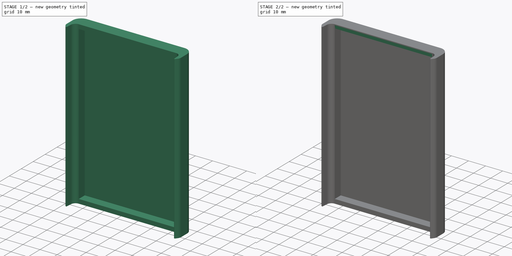
[diagram: build sequence overview — one tinted view per stage of 2, left to right]
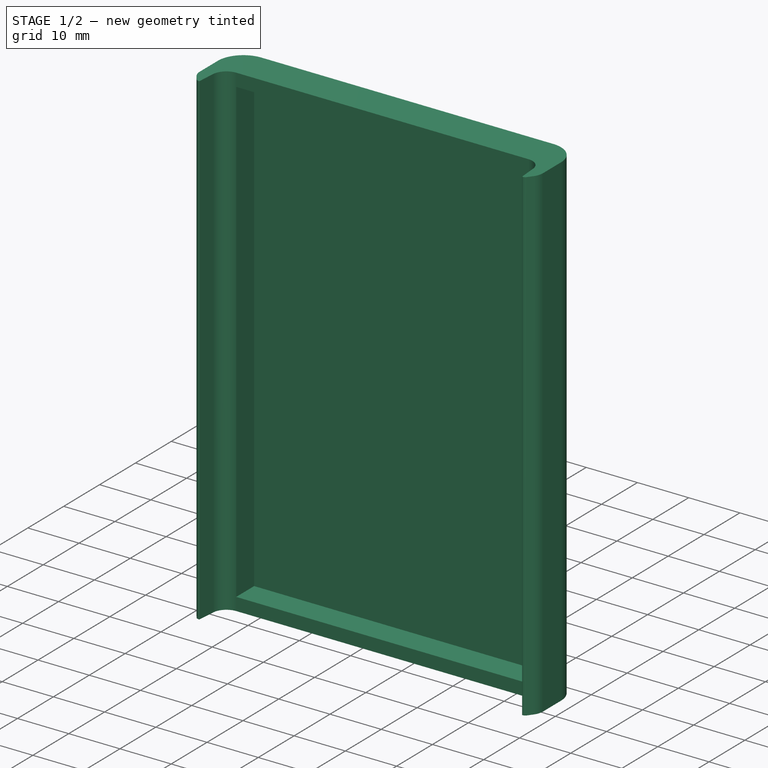
[diagram: stage 1 of 2 — iso view after this stage's code; geometry added in this stage tinted green]
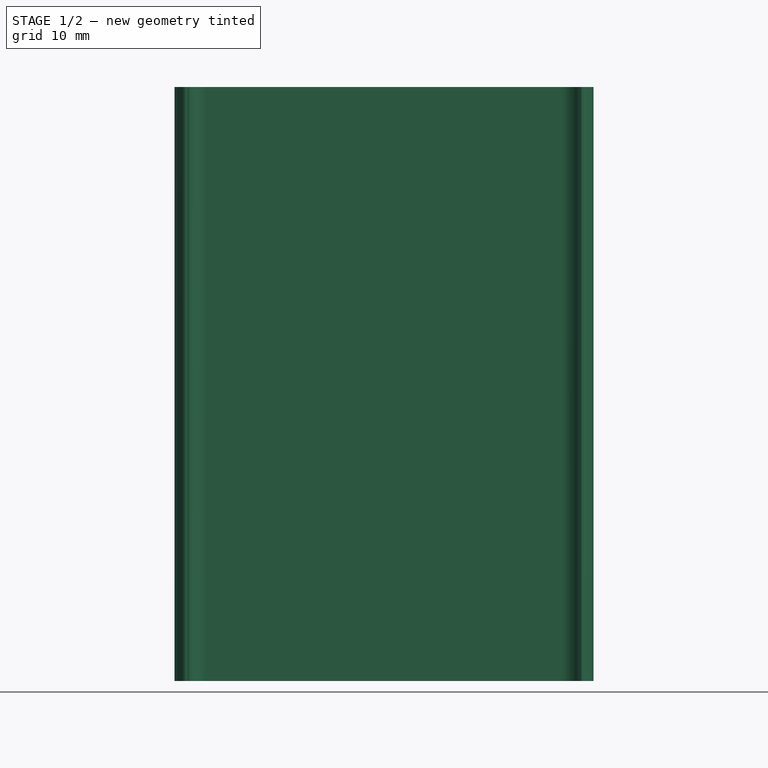
[diagram: stage 1 of 2 — front view after this stage's code; geometry added in this stage tinted green]
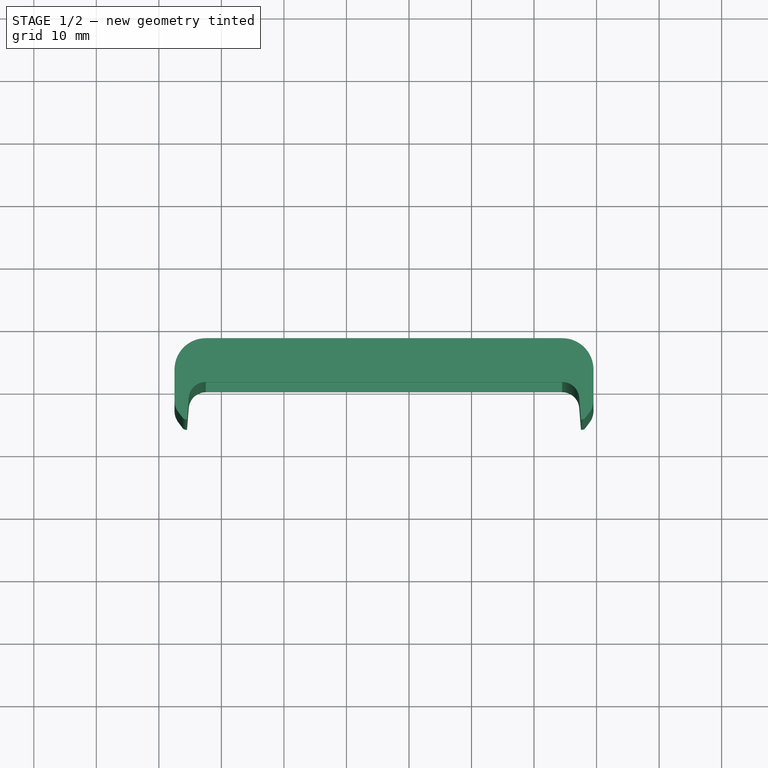
[diagram: stage 1 of 2 — top view after this stage's code; geometry added in this stage tinted green]
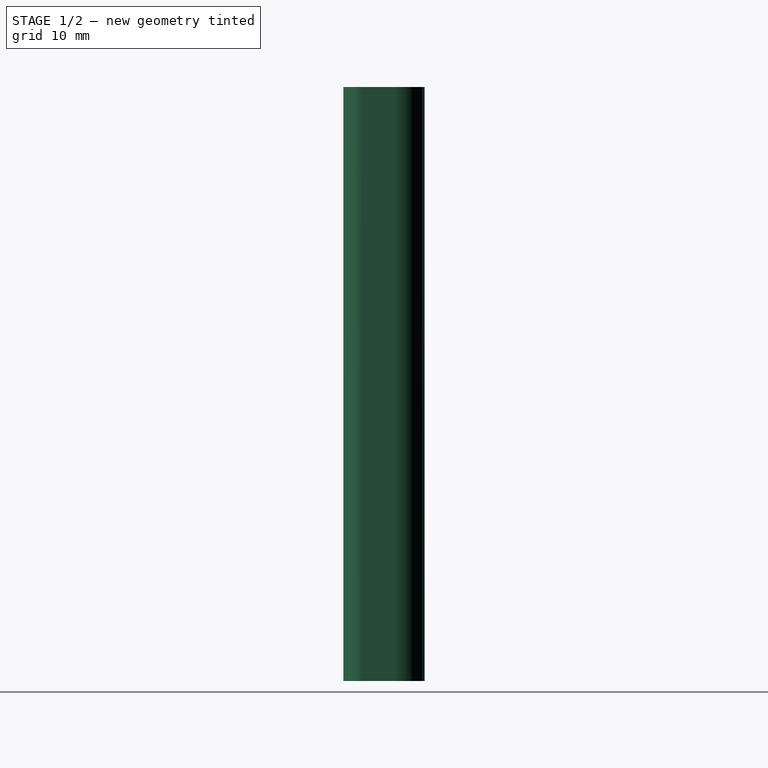
[diagram: stage 1 of 2 — right view after this stage's code; geometry added in this stage tinted green]
FCSTD DOCUMENT  (FreeCAD 0.20R29410 (Git))
Label: lid
License: All rights reserved
LicenseURL: http://en.wikipedia.org/wiki/All_rights_reserved
objects: Sketcher::SketchObject×4, PartDesign::Pocket×3, PartDesign::Pad×1, PartDesign::Body×1
note: 13 computed .brp shape members not serialized (recipe doc carries the construction recipe); baked Part::Feature solids carry a one-line shape summary decoded from their .brp

FEATURE [Sketcher::SketchObject] Sketch002
  FullyConstrained = false
  MapMode = 5
  Support = -> [XY_Plane001]
  sketch-geometry (26):
    g0: ArcOfCircle CenterX=-2.4938 CenterY=12.2681 CenterZ=0 NormalX=0 NormalY=0 NormalZ=1 AngleXU=0 Radius=5 StartAngle=1.5708 EndAngle=3.14159
    g1: LineSegment StartX=-2.4938 StartY=17.2681 StartZ=0 EndX=54.5062 EndY=17.2681 EndZ=0
    g2: ArcOfCircle CenterX=54.5062 CenterY=12.2681 CenterZ=0 NormalX=0 NormalY=0 NormalZ=1 AngleXU=0 Radius=5 StartAngle=0 EndAngle=1.5708
    g3: LineSegment StartX=59.5062 StartY=12.2681 StartZ=0 EndX=59.5062 EndY=7.26806 EndZ=0
    g4: LineSegment StartX=-7.4938 StartY=7.26806 StartZ=0 EndX=-7.4938 EndY=12.2681 EndZ=0
    g5: LineSegment StartX=-2.4938 StartY=10.2681 StartZ=0 EndX=54.5062 EndY=10.2681 EndZ=0
    g6: LineSegment StartX=-6.8938 StartY=5.46806 StartZ=0 EndX=-6.2038 EndY=4.54806 EndZ=0
    g7: LineSegment StartX=-5.6438 StartY=4.26806 StartZ=0 EndX=-5.56162 EndY=4.26806 EndZ=0
    g8: LineSegment StartX=58.9062 StartY=5.46806 StartZ=0 EndX=58.2162 EndY=4.54806 EndZ=0
    g9: LineSegment StartX=57.574 StartY=4.26806 StartZ=0 EndX=57.6562 EndY=4.26806 EndZ=0
    g10: LineSegment StartX=-5.48838 StartY=4.33567 StartZ=0 EndX=-5.21424 EndY=7.75687 EndZ=0
    g11: LineSegment StartX=57.2267 StartY=7.75687 StartZ=0 EndX=57.5008 EndY=4.33567 EndZ=0
    g12: ArcOfCircle CenterX=-2.4938 CenterY=7.53889 CenterZ=0 NormalX=0 NormalY=0 NormalZ=1 AngleXU=0 Radius=2.72917 StartAngle=1.5708 EndAngle=3.06164
    g13: ArcOfCircle CenterX=54.5062 CenterY=7.53889 CenterZ=0 NormalX=0 NormalY=0 NormalZ=1 AngleXU=0 Radius=2.72917 StartAngle=0.0799574 EndAngle=1.5708
    g14: ArcOfCircle CenterX=-4.4938 CenterY=7.26806 CenterZ=0 NormalX=0 NormalY=0 NormalZ=1 AngleXU=0 Radius=3 StartAngle=3.14159 EndAngle=3.78509
    g15: GeomPoint X=-7.4938 Y=6.26806 Z=0
    g16: ArcOfCircle CenterX=56.5062 CenterY=7.26806 CenterZ=0 NormalX=0 NormalY=0 NormalZ=1 AngleXU=0 Radius=3 StartAngle=5.63968 EndAngle=6.28319
    g17: GeomPoint X=59.5062 Y=6.26806 Z=0
    g18: ArcOfCircle CenterX=-5.56162 CenterY=4.34154 CenterZ=0 NormalX=0 NormalY=0 NormalZ=1 AngleXU=0 Radius=0.07348 StartAngle=4.71239 EndAngle=6.20323
    g19: GeomPoint X=-5.4938 Y=4.26806 Z=0
    g20: ArcOfCircle CenterX=57.574 CenterY=4.34154 CenterZ=0 NormalX=0 NormalY=0 NormalZ=1 AngleXU=0 Radius=0.07348 StartAngle=3.22155 EndAngle=4.71239
    g21: GeomPoint X=57.5062 Y=4.26806 Z=0
    g22: ArcOfCircle CenterX=-5.6438 CenterY=4.96806 CenterZ=0 NormalX=0 NormalY=0 NormalZ=1 AngleXU=0 Radius=0.7 StartAngle=3.78509 EndAngle=4.71239
    g23: GeomPoint X=-5.9938 Y=4.26806 Z=0
    g24: ArcOfCircle CenterX=57.6562 CenterY=4.96806 CenterZ=0 NormalX=0 NormalY=0 NormalZ=1 AngleXU=0 Radius=0.7 StartAngle=4.71239 EndAngle=5.63968
    g25: GeomPoint X=58.0062 Y=4.26806 Z=0
  constraints (62):
    c: Coincident(g0,g4)
    c: Coincident(g0,g1)
    c: DistanceY(g0,g0) = 5
    c: DistanceX(g0,g0) = 5
    c: Coincident(g1,g2)
    c: Coincident(g2,g3)
    c: DistanceX(g1,g2) = 5
    c: DistanceY(g2,g1) = 5
    c: DistanceY(g15,g4) = 6
    c: DistanceY(g17,g3) = 6
    c: Vertical(g4)
    c: Vertical(g3)
    c: Horizontal(g1)
    c: Horizontal(g5)
    c: Horizontal(g0,g0)
    c: Horizontal(g2,g2)
    c: DistanceX(g23,g19) = 0.5
    c: Horizontal(g7)
    c: Horizontal(g9)
    c: DistanceX(g21,g25) = 0.5
    c: Tangent(g10,g12) = 1.5708
    c: Tangent(g5,g12) = 1.5708
    c: Tangent(g5,g13) = 1.5708
    c: Tangent(g11,g13) = 1.5708
    c: DistanceY(g5,g0) = 7
    c: DistanceX(g5,g2) = 5
    c: DistanceX(g0,g5) = 5
    c: Distance(g11,g21) = 3.5
    c: Distance(g10,g19) = 3.5
    c: DistanceX(g1,g1) = 57
    c: DistanceX(g15,g19) = 2
    c: DistanceX(g21,g17) = 2
    c: DistanceY(g19,g0) = 13
    c: DistanceY(g21,g1) = 13
    c: PointOnObject(g15,g4)
    c: PointOnObject(g15,g6)
    c: Tangent(g4,g14) = 1.5708
    c: Tangent(g6,g14) = -1.5708
    c: DistanceY(g4,g4) = 5
    c: PointOnObject(g17,g3)
    c: PointOnObject(g17,g8)
    c: Tangent(g3,g16) = 1.5708
    c: Tangent(g8,g16) = 1.5708
    c: DistanceY(g3,g3) = 5
    c: PointOnObject(g19,g7)
    c: PointOnObject(g19,g10)
    c: Tangent(g7,g18) = -1.5708
    c: Tangent(g10,g18) = -1.5708
    c: PointOnObject(g21,g9)
    c: PointOnObject(g21,g11)
    c: Tangent(g9,g20) = -1.5708
    c: Tangent(g11,g20) = -1.5708
    c: PointOnObject(g23,g6)
    c: PointOnObject(g23,g7)
    c: Tangent(g6,g22) = -1.5708
    c: Tangent(g7,g22) = -1.5708
    c: Distance(g6) = 1.15
    c: PointOnObject(g25,g8)
    c: PointOnObject(g25,g9)
    c: Tangent(g8,g24) = 1.5708
    c: Tangent(g9,g24) = -1.5708
    c: Distance(g8) = 1.15
FEATURE [PartDesign::Pad] Pad001
  Direction = (0,0,1)
  Length = 95
  Length2 = 10
  Profile = -> Sketch002
  ReferenceAxis = -> Sketch002 [N_Axis]
  Type = 0
FEATURE [Sketcher::SketchObject] Sketch003
  FullyConstrained = true
  MapMode = 5
  Placement = pos=(0,10.2681,0) rot=(1,0,0;1.5708rad)
  Support = -> [Pad001]
  sketch-geometry (4):
    g0: LineSegment StartX=-2.5 StartY=92.5 StartZ=0 EndX=54.5 EndY=92.5 EndZ=0
    g1: LineSegment StartX=54.5 StartY=92.5 StartZ=0 EndX=54.5 EndY=2.5 EndZ=0
    g2: LineSegment StartX=54.5 StartY=2.5 StartZ=0 EndX=-2.5 EndY=2.5 EndZ=0
    g3: LineSegment StartX=-2.5 StartY=2.5 StartZ=0 EndX=-2.5 EndY=92.5 EndZ=0
  constraints (12):
    c: Coincident(g0,g1)
    c: Coincident(g1,g2)
    c: Coincident(g2,g3)
    c: Coincident(g3,g0)
    c: Horizontal(g0)
    c: Horizontal(g2)
    c: Vertical(g1)
    c: Vertical(g3)
    c: DistanceY(g-1,g2) = 2.5
    c: DistanceY(g3,g3) = 90
    c: DistanceX(g2,g2) = 57
    c: DistanceX(g-1,g2) = -2.5
FEATURE [PartDesign::Pocket] Pocket001
  BaseFeature = -> Pad001
  Direction = (0,1,-2e-16)
  Length = 5
  Length2 = 5
  Profile = -> Sketch003
  ReferenceAxis = -> Sketch003 [N_Axis]
  Type = 0
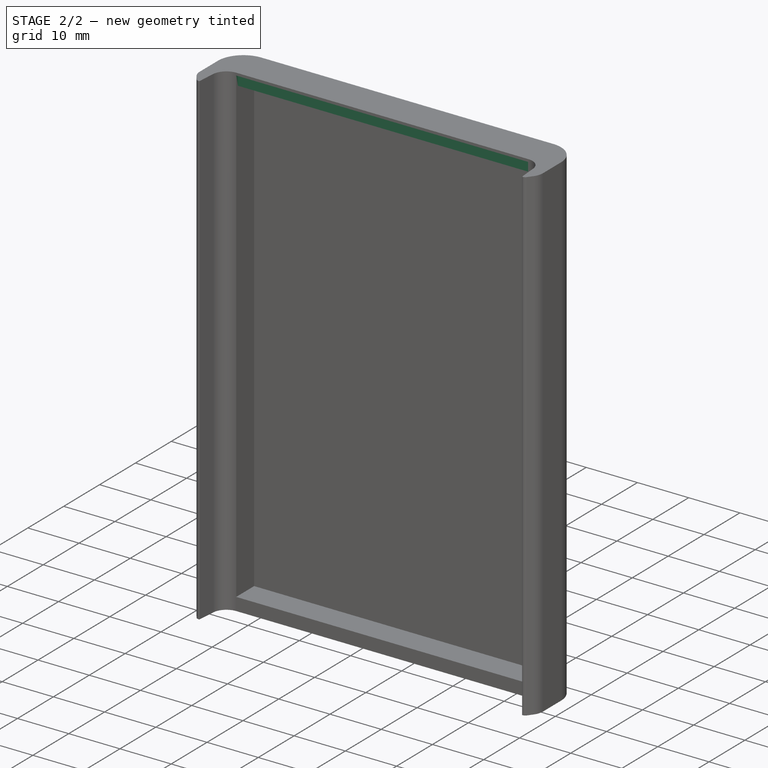
[diagram: stage 2 of 2 — iso view after this stage's code; geometry added in this stage tinted green]
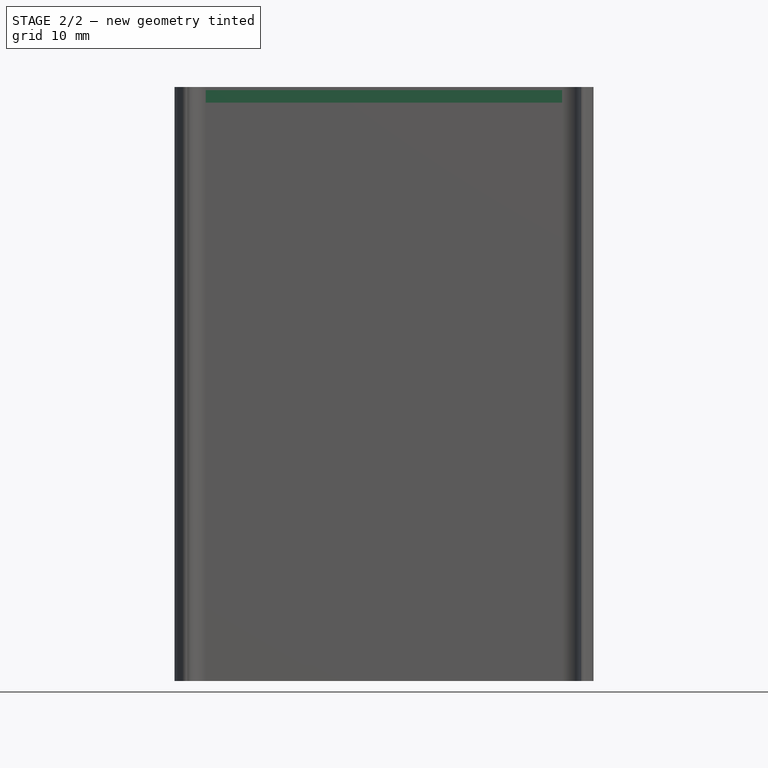
[diagram: stage 2 of 2 — front view after this stage's code; geometry added in this stage tinted green]
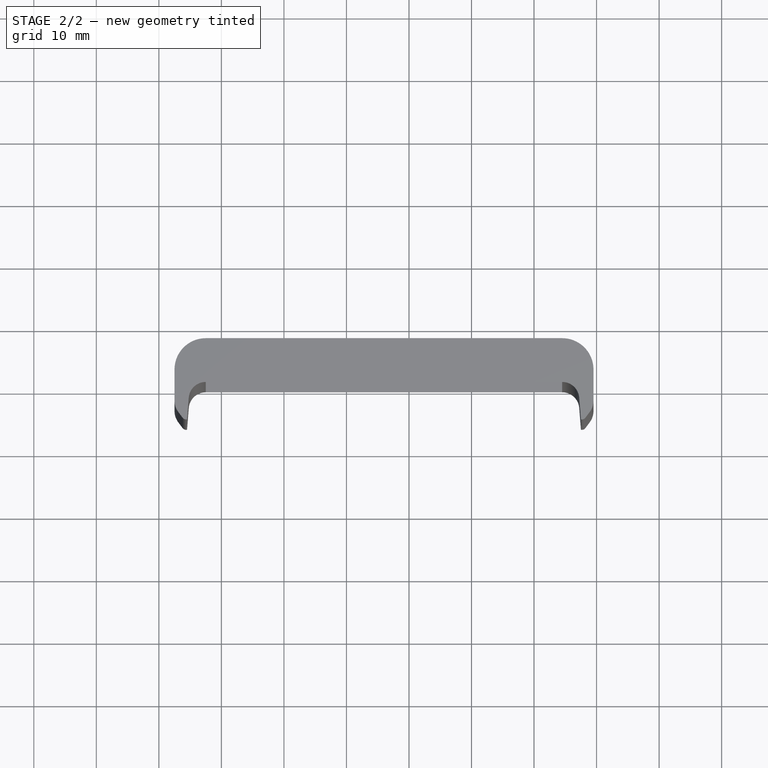
[diagram: stage 2 of 2 — top view after this stage's code; geometry added in this stage tinted green]
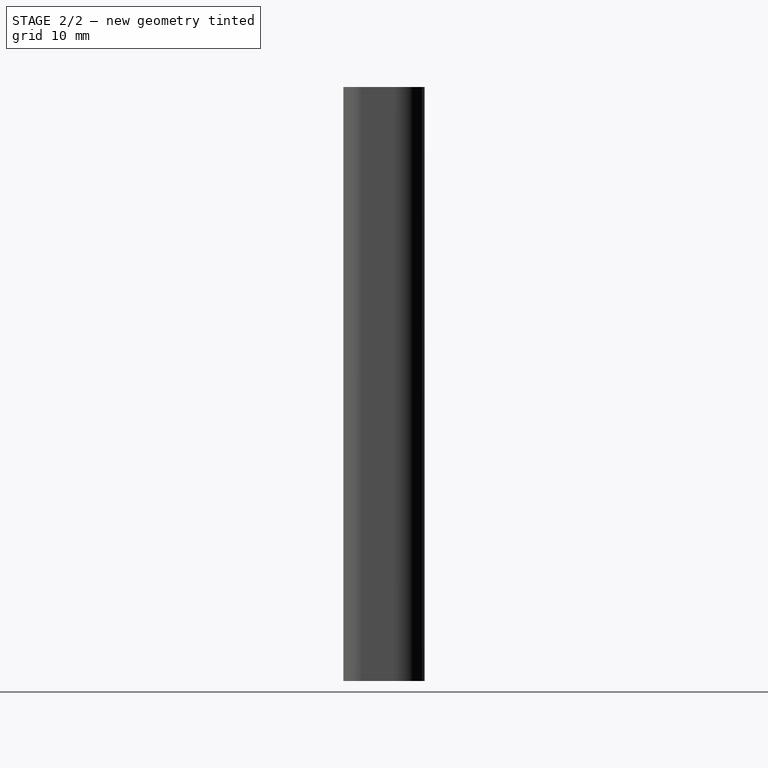
[diagram: stage 2 of 2 — right view after this stage's code; geometry added in this stage tinted green]
FEATURE [Sketcher::SketchObject] Sketch004
  FullyConstrained = true
  MapMode = 5
  Placement = pos=(0,10.2681,0) rot=(1,0,0;1.5708rad)
  Support = -> [Pocket001]
  sketch-geometry (4):
    g0: LineSegment StartX=-2.5 StartY=94.5 StartZ=0 EndX=54.5 EndY=94.5 EndZ=0
    g1: LineSegment StartX=54.5 StartY=94.5 StartZ=0 EndX=54.5 EndY=92.5 EndZ=0
    g2: LineSegment StartX=54.5 StartY=92.5 StartZ=0 EndX=-2.5 EndY=92.5 EndZ=0
    g3: LineSegment StartX=-2.5 StartY=92.5 StartZ=0 EndX=-2.5 EndY=94.5 EndZ=0
  constraints (12):
    c: Coincident(g0,g1)
    c: Coincident(g1,g2)
    c: Coincident(g2,g3)
    c: Coincident(g3,g0)
    c: Horizontal(g0)
    c: Horizontal(g2)
    c: Vertical(g1)
    c: Vertical(g3)
    c: DistanceY(g-1,g2) = 92.5
    c: DistanceX(g2,g-1) = 2.5
    c: DistanceX(g2,g2) = 57
    c: DistanceY(g3,g3) = 2
FEATURE [PartDesign::Pocket] Pocket002
  BaseFeature = -> Pocket001
  Direction = (0,1,-2e-16)
  Length = 0.5
  Length2 = 5
  Profile = -> Sketch004
  ReferenceAxis = -> Sketch004 [N_Axis]
  Type = 0
FEATURE [Sketcher::SketchObject] Sketch
  FullyConstrained = false
  MapMode = 5
  Placement = pos=(0,17.2681,0) rot=(0,0.707107,0.707107;3.14159rad)
  Support = -> [Pocket002]
  sketch-geometry (6):
    g0: LineSegment StartX=-37.5 StartY=12 StartZ=0 EndX=-14.5 EndY=12 EndZ=0
    g1: LineSegment StartX=-14.5 StartY=12 StartZ=0 EndX=-14.5 EndY=37 EndZ=0
    g2: LineSegment StartX=-14.5 StartY=37 StartZ=0 EndX=-37.5 EndY=37 EndZ=0
    g3: LineSegment StartX=-37.5 StartY=37 StartZ=0 EndX=-37.5 EndY=12 EndZ=0
    g4: GeomPoint X=-54.4888 Y=0 Z=0
    g5: GeomPoint X=2.49755 Y=0 Z=0
  constraints (14):
    c: Coincident(g0,g1)
    c: Coincident(g1,g2)
    c: Coincident(g2,g3)
    c: Coincident(g3,g0)
    c: Horizontal(g0)
    c: Horizontal(g2)
    c: Vertical(g1)
    c: Vertical(g3)
    c: DistanceY(g1,g1) = 25
    c: DistanceX(g2,g2) = 23
    c: DistanceX(g0,g-1) = 14.5
    c: DistanceY(g-1,g0) = 12
    c: PointOnObject(g4,g-1)
    c: PointOnObject(g5,g-1)
FEATURE [PartDesign::Pocket] Pocket
  BaseFeature = -> Pocket002
  Direction = (0,-1,2e-16)
  Length = 0.5
  Length2 = 5
  Profile = -> Sketch
  ReferenceAxis = -> Sketch [N_Axis]
  Type = 0
FEATURE [PartDesign::Body] Body001  label="lid"
  Group = -> [Sketch002,Pad001,Sketch003,Pocket001,Sketch004,Pocket002,Sketch,Pocket]
  Origin = -> Origin001
  Tip = -> Pocket
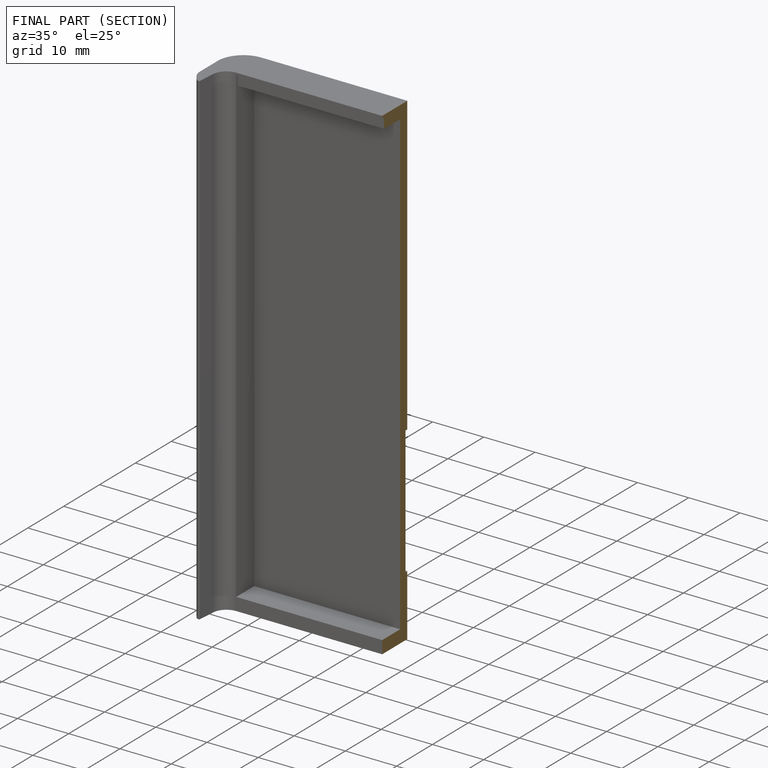
[diagram: finished part — half-section view (interior)]
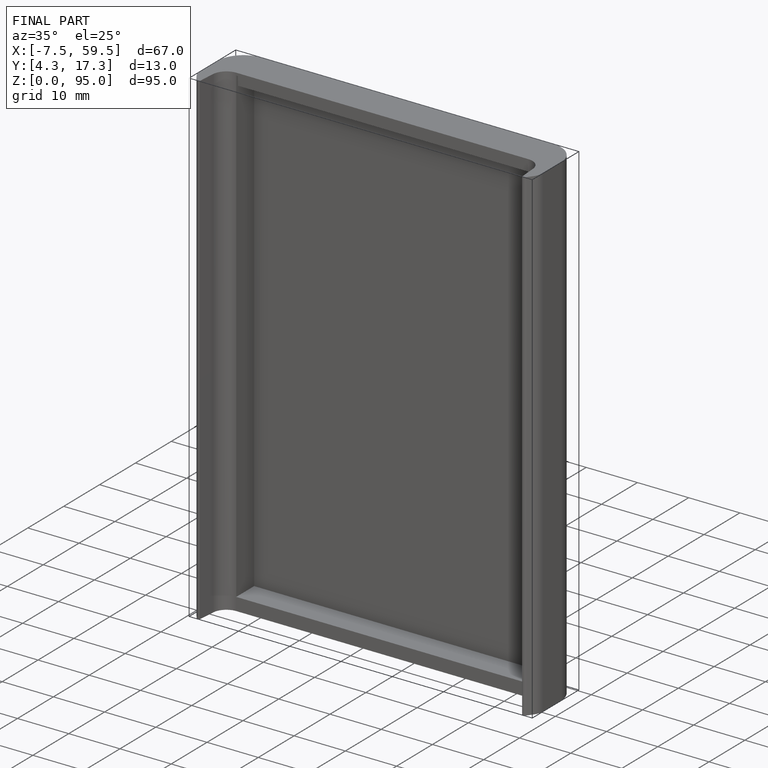
[diagram: finished part — iso view with bounding-box wireframe]
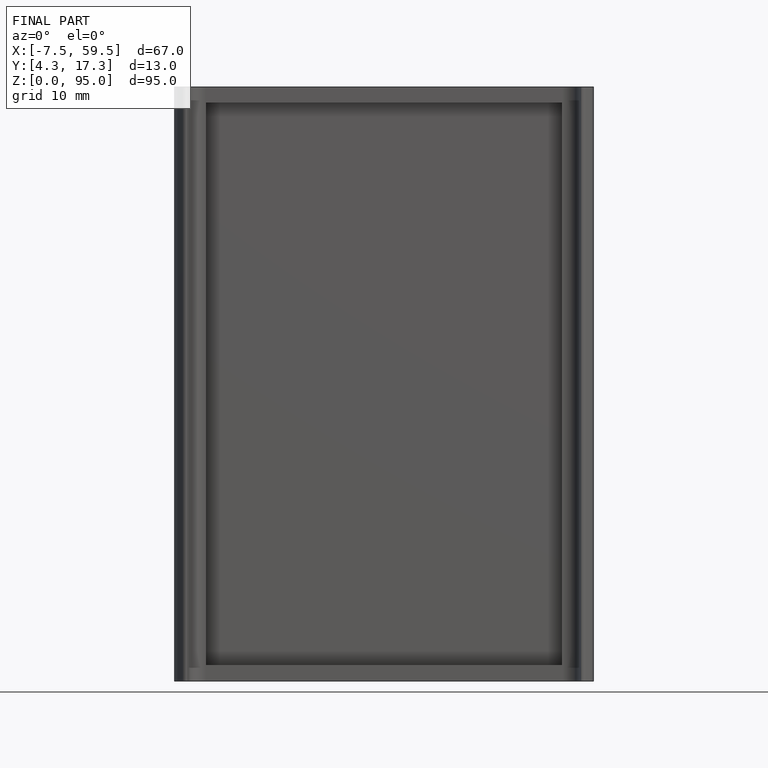
[diagram: finished part — front view with bounding-box wireframe]
